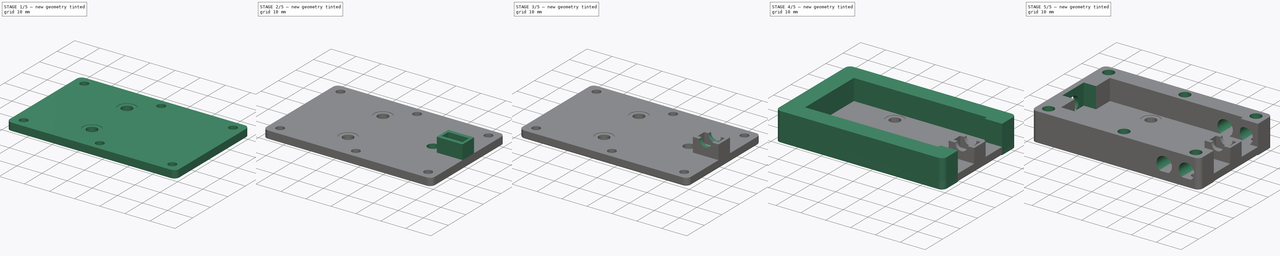
[diagram: build sequence overview — one tinted view per stage of 5, left to right]
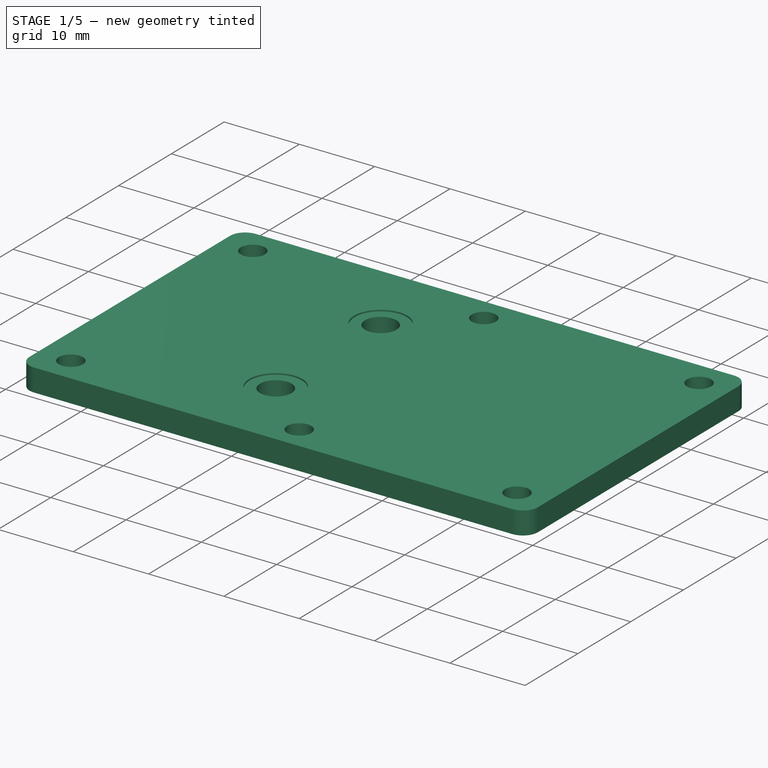
[diagram: stage 1 of 5 — iso view after this stage's code; geometry added in this stage tinted green]
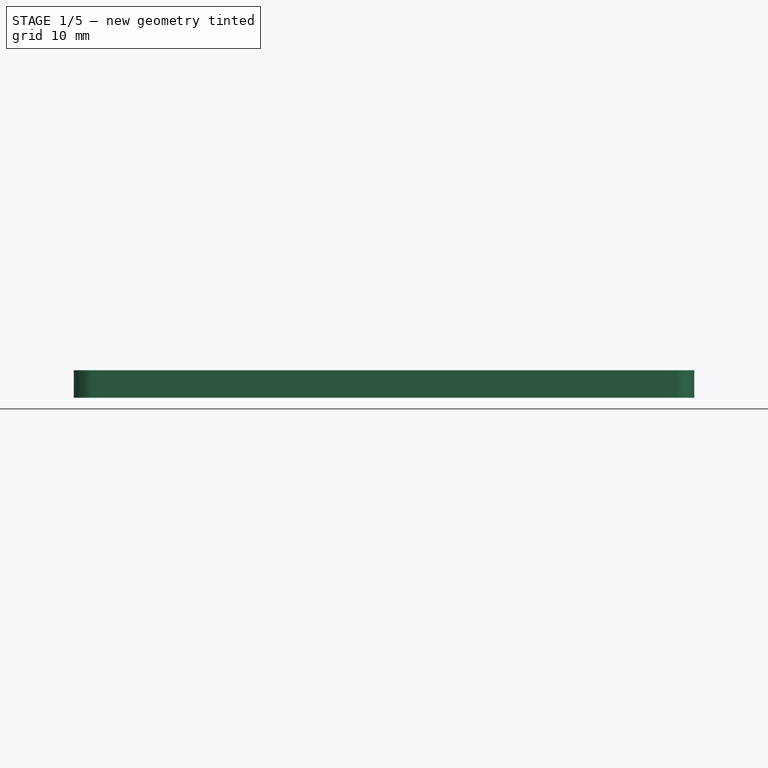
[diagram: stage 1 of 5 — front view after this stage's code; geometry added in this stage tinted green]
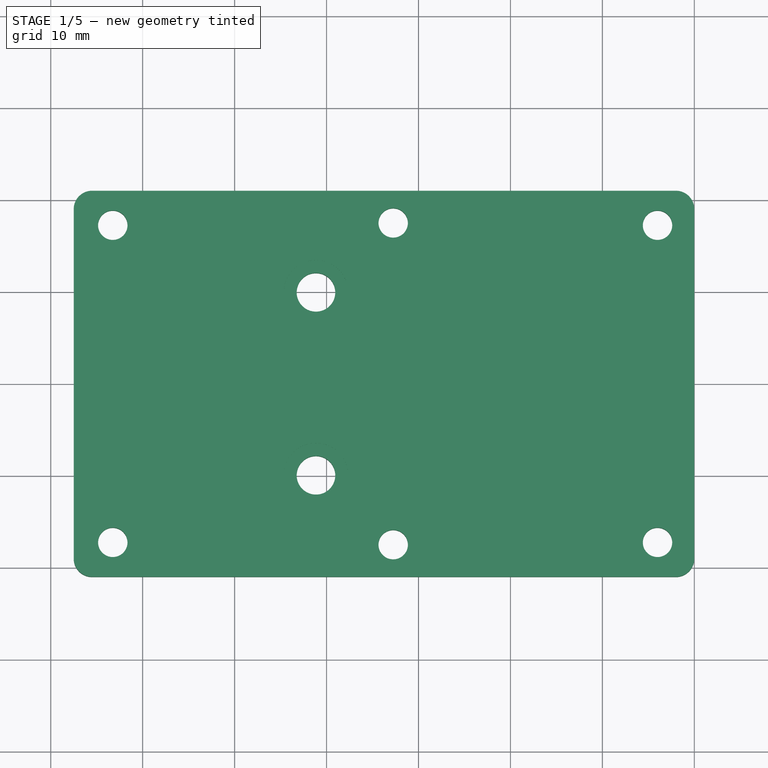
[diagram: stage 1 of 5 — top view after this stage's code; geometry added in this stage tinted green]
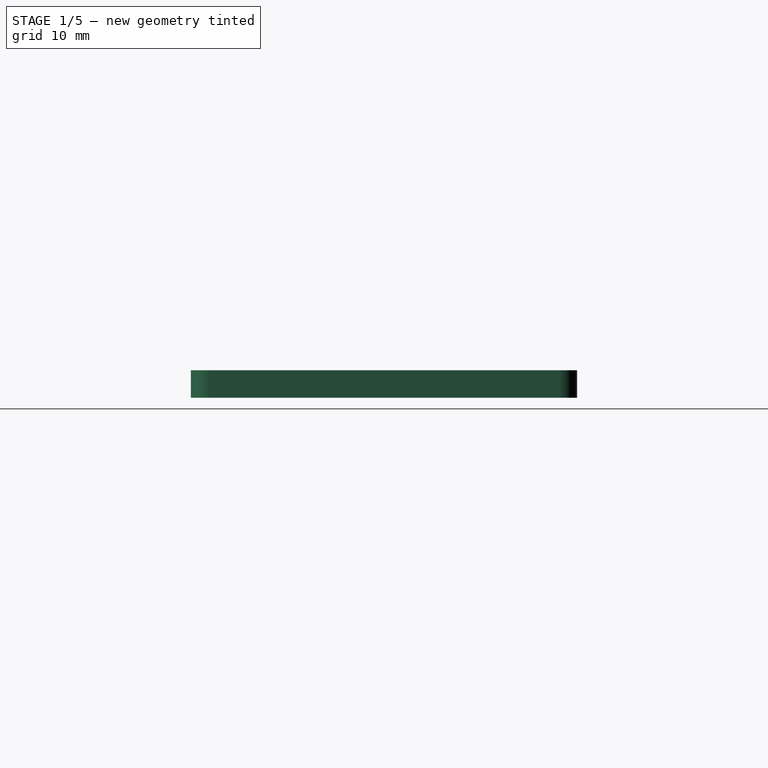
[diagram: stage 1 of 5 — right view after this stage's code; geometry added in this stage tinted green]
FCSTD DOCUMENT  (FreeCAD 1.0R39109 (Git))
Label: PaddleCase
License: All rights reserved
LicenseURL: http://en.wikipedia.org/wiki/All_rights_reserved
objects: Sketcher::SketchObject×16, PartDesign::Pocket×13, PartDesign::Pad×3, PartDesign::Body×2, App::Part×2, PartDesign::Chamfer×1, PartDesign::Fillet×1
note: 88 computed .brp shape members not serialized (recipe doc carries the construction recipe); baked Part::Feature solids carry a one-line shape summary decoded from their .brp

FEATURE [PartDesign::Body] Body  label="PaddleFrameBody"
  AllowCompound = false
  Group = -> [Sketch,Pad,Sketch001,Pocket,Sketch002,Pocket001,Sketch003,Pocket002,Sketch004,Pocket003,Sketch005,Pocket004,Sketch006,Pocket005]
  Origin = -> Origin001
  Tip = -> Pocket005
FEATURE [App::Part] Part  label="PaddleFrame"
  Group = -> [Body]
  Origin = -> Origin
FEATURE [Sketcher::SketchObject] Sketch007
  ArcFitTolerance = 1e-06
  AttachmentSupport = -> [XY_Plane003]
  FullyConstrained = true
  MakeInternals = false
  MapMode = 5
  sketch-geometry (12):
    g0: LineSegment StartX=-2 StartY=21 StartZ=0 EndX=-65.5 EndY=21 EndZ=0
    g1: LineSegment StartX=-67.5 StartY=19 StartZ=0 EndX=-67.5 EndY=-19 EndZ=0
    g2: LineSegment StartX=-65.5 StartY=-21 StartZ=0 EndX=-2 EndY=-21 EndZ=0
    g3: LineSegment StartX=0 StartY=-19 StartZ=0 EndX=0 EndY=19 EndZ=0
    g4: ArcOfCircle CenterX=-65.5 CenterY=19 CenterZ=0 NormalX=0 NormalY=0 NormalZ=1 AngleXU=0 Radius=2 StartAngle=1.5708 EndAngle=3.14159
    g5: GeomPoint [constr] X=-67.5 Y=21 Z=0
    g6: ArcOfCircle CenterX=-2 CenterY=19 CenterZ=0 NormalX=0 NormalY=0 NormalZ=1 AngleXU=0 Radius=2 StartAngle=6e-16 EndAngle=1.5708
    g7: GeomPoint [constr] X=0 Y=21 Z=0
    g8: ArcOfCircle CenterX=-2 CenterY=-19 CenterZ=0 NormalX=0 NormalY=0 NormalZ=1 AngleXU=0 Radius=2 StartAngle=4.71239 EndAngle=6.28319
    g9: GeomPoint [constr] X=0 Y=-21 Z=0
    g10: ArcOfCircle CenterX=-65.5 CenterY=-19 CenterZ=0 NormalX=0 NormalY=0 NormalZ=1 AngleXU=0 Radius=2 StartAngle=3.14159 EndAngle=4.71239
    g11: GeomPoint [constr] X=-67.5 Y=-21 Z=0
  constraints (28):
    c: Horizontal(g0)
    c: Horizontal(g2)
    c: Vertical(g1)
    c: Vertical(g3)
    c: PointOnObject(g7,g-2)
    c: DistanceY(g9,g7) = 42
    c: DistanceY(g-1,g7) = 21
    c: DistanceX(g5,g7) = 67.5
    c: PointOnObject(g5,g1)
    c: PointOnObject(g5,g0)
    c: Tangent(g1,g4) = -1.5708
    c: Tangent(g0,g4) = -1.5708
    c: PointOnObject(g7,g0)
    c: PointOnObject(g7,g3)
    c: Tangent(g0,g6) = -1.5708
    c: Tangent(g3,g6) = -1.5708
    c: PointOnObject(g9,g3)
    c: PointOnObject(g9,g2)
    c: Tangent(g3,g8) = -1.5708
    c: Tangent(g2,g8) = -1.5708
    c: PointOnObject(g11,g1)
    c: PointOnObject(g11,g2)
    c: Tangent(g1,g10) = -1.5708
    c: Tangent(g2,g10) = -1.5708
    c: Equal(g10,g8)
    c: Equal(g10,g6)
    c: Equal(g10,g4)
    c: Radius(g10) = 2
FEATURE [PartDesign::Pad] Pad001  label="MainLidPad"
  Direction = (0,0,1)
  Length = 3
  Length2 = 10
  Profile = -> Sketch007
  ReferenceAxis = -> Sketch007 [N_Axis]
  Suppressed = false
  Type = 0
FEATURE [Sketcher::SketchObject] Sketch008
  ArcFitTolerance = 1e-06
  AttachmentSupport = -> [Pocket003]
  FullyConstrained = true
  MakeInternals = false
  MapMode = 5
  Placement = pos=(0,0,11.4) rot=(0,0,1;0rad)
  sketch-geometry (6):
    g0: Circle CenterX=-63.25 CenterY=17.25 CenterZ=0 NormalX=0 NormalY=0 NormalZ=1 AngleXU=0 Radius=1.6
    g1: Circle CenterX=-4 CenterY=17.25 CenterZ=0 NormalX=0 NormalY=0 NormalZ=1 AngleXU=0 Radius=1.6
    g2: Circle CenterX=-4 CenterY=-17.25 CenterZ=0 NormalX=0 NormalY=0 NormalZ=1 AngleXU=0 Radius=1.6
    g3: Circle CenterX=-63.25 CenterY=-17.25 CenterZ=0 NormalX=0 NormalY=0 NormalZ=1 AngleXU=0 Radius=1.6
    g4: Circle CenterX=-32.75 CenterY=-17.5 CenterZ=0 NormalX=0 NormalY=0 NormalZ=1 AngleXU=0 Radius=1.6
    g5: Circle CenterX=-32.75 CenterY=17.5 CenterZ=0 NormalX=0 NormalY=0 NormalZ=1 AngleXU=0 Radius=1.6
  constraints (18):
    c: Diameter(g0) = 3.2
    c: Diameter(g1) = 3.2
    c: Diameter(g2) = 3.2
    c: Diameter(g3) = 3.2
    c: Diameter(g4) = 3.2
    c: Diameter(g5) = 3.2
    c: DistanceX(g1,g2) = 0
    c: DistanceX(g5,g4) = 0
    c: DistanceX(g3,g0) = 0
    c: DistanceX(g1,g-1) = 4
    c: DistanceX(g5,g-1) = 32.75
    c: DistanceX(g0,g-1) = 63.25
    c: DistanceY(g-1,g1) = 17.25
    c: DistanceY(g2,g-1) = 17.25
    c: DistanceY(g1,g0) = 0
    c: DistanceY(g3,g2) = 0
    c: DistanceY(g-1,g5) = 17.5
    c: DistanceY(g4,g-1) = 17.5
FEATURE [PartDesign::Pocket] Pocket006  label="ScrewLidHoles"
  BaseFeature = -> Pad001
  Direction = (0,0,-1)
  Length = 5
  Length2 = 5
  Profile = -> Sketch008
  ReferenceAxis = -> Sketch008 [N_Axis]
  Suppressed = false
  Type = 1
FEATURE [Sketcher::SketchObject] Sketch009
  ArcFitTolerance = 1e-06
  AttachmentSupport = -> [Pocket006]
  FullyConstrained = true
  MakeInternals = false
  MapMode = 5
  Placement = pos=(0,0,3) rot=(0,0,1;0rad)
  sketch-geometry (2):
    g0: Circle CenterX=-41.15 CenterY=9.95 CenterZ=0 NormalX=0 NormalY=0 NormalZ=1 AngleXU=0 Radius=2.1
    g1: Circle CenterX=-41.15 CenterY=-9.95 CenterZ=0 NormalX=0 NormalY=0 NormalZ=1 AngleXU=0 Radius=2.1
  constraints (6):
    c: DistanceX(g1,g0) = 0
    c: Equal(g0,g1)
    c: Diameter(g0) = 4.2
    c: DistanceY(g-1,g0) = 9.95
    c: DistanceY(g1,g-1) = 9.95
    c: DistanceX(g1,g-1) = 41.15
FEATURE [PartDesign::Pocket] Pocket007  label="PaddleScrewPockets"
  BaseFeature = -> Pocket006
  Direction = (0,0,-1)
  Length = 5
  Length2 = 5
  Profile = -> Sketch009
  ReferenceAxis = -> Sketch009 [N_Axis]
  Suppressed = false
  Type = 1
FEATURE [Sketcher::SketchObject] Sketch010
  ArcFitTolerance = 1e-06
  AttachmentSupport = -> [Pocket006]
  FullyConstrained = true
  MakeInternals = false
  MapMode = 5
  Placement = pos=(0,0,3) rot=(0,0,1;0rad)
  sketch-geometry (2):
    g0: Circle CenterX=-41.15 CenterY=9.95 CenterZ=0 NormalX=0 NormalY=0 NormalZ=1 AngleXU=0 Radius=3.5
    g1: Circle CenterX=-41.15 CenterY=-9.95 CenterZ=0 NormalX=0 NormalY=0 NormalZ=1 AngleXU=0 Radius=3.5
  constraints (6):
    c: DistanceX(g1,g0) = 0
    c: Equal(g0,g1)
    c: Diameter(g0) = 7
    c: DistanceY(g-1,g0) = 9.95
    c: DistanceY(g1,g-1) = 9.95
    c: DistanceX(g1,g-1) = 41.15
FEATURE [PartDesign::Pocket] Pocket008  label="WasherPockets"
  BaseFeature = -> Pocket007
  Direction = (0,0,-1)
  Length = 0.2
  Length2 = 5
  Profile = -> Sketch010
  ReferenceAxis = -> Sketch010 [N_Axis]
  Suppressed = false
  Type = 0
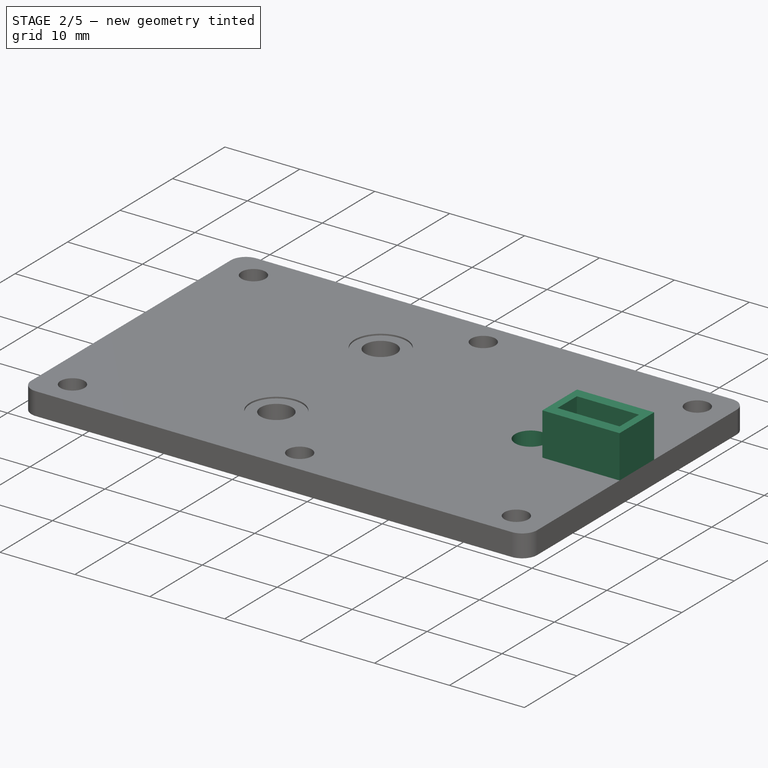
[diagram: stage 2 of 5 — iso view after this stage's code; geometry added in this stage tinted green]
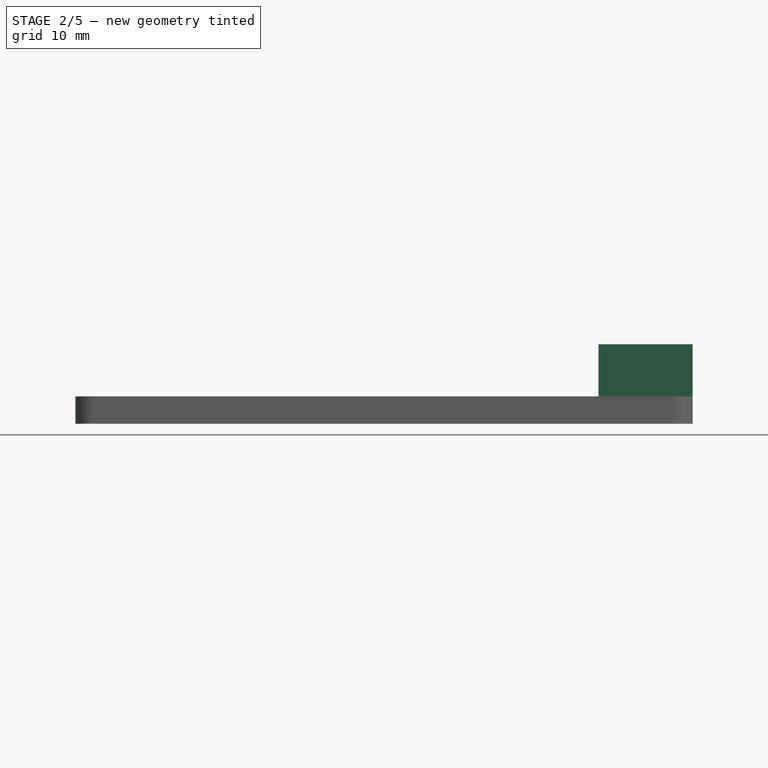
[diagram: stage 2 of 5 — front view after this stage's code; geometry added in this stage tinted green]
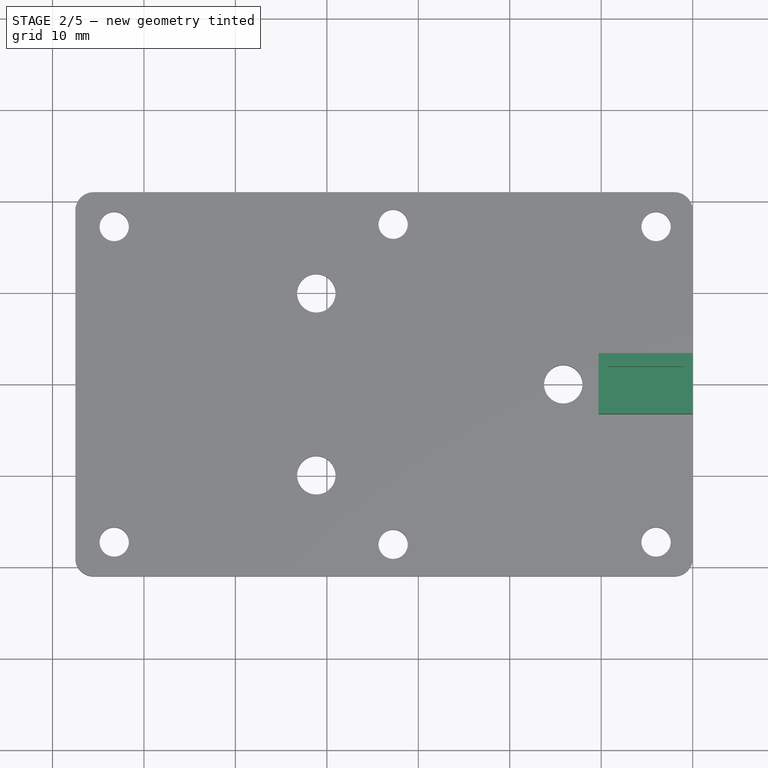
[diagram: stage 2 of 5 — top view after this stage's code; geometry added in this stage tinted green]
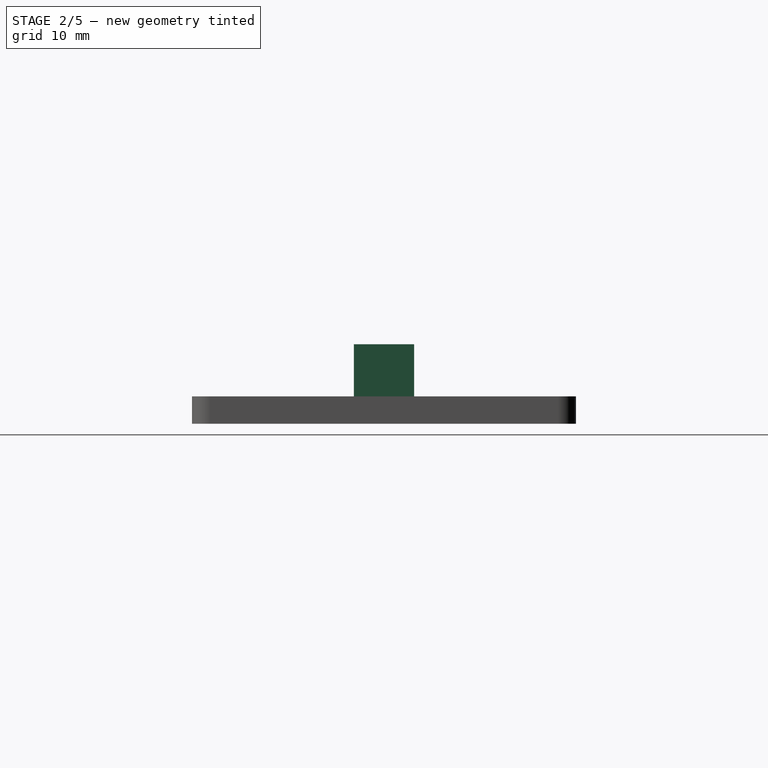
[diagram: stage 2 of 5 — right view after this stage's code; geometry added in this stage tinted green]
FEATURE [Sketcher::SketchObject] Sketch011
  ArcFitTolerance = 1e-06
  AttachmentSupport = -> [Pocket008]
  FullyConstrained = true
  MakeInternals = false
  MapMode = 5
  Placement = pos=(0,0,3) rot=(0,0,1;0rad)
  sketch-geometry (1):
    g0: Circle CenterX=-14.15 CenterY=0 CenterZ=0 NormalX=0 NormalY=0 NormalZ=1 AngleXU=0 Radius=2.1
  constraints (3):
    c: Diameter(g0) = 4.2
    c: PointOnObject(g0,g-1)
    c: DistanceX(g0,g-1) = 14.15
FEATURE [PartDesign::Pocket] Pocket009  label="ContactPocket"
  BaseFeature = -> Pocket008
  Direction = (0,0,-1)
  Length = 5
  Length2 = 5
  Profile = -> Sketch011
  ReferenceAxis = -> Sketch011 [N_Axis]
  Suppressed = false
  Type = 1
FEATURE [Sketcher::SketchObject] Sketch012
  ArcFitTolerance = 1e-06
  AttachmentSupport = -> [Pocket009]
  FullyConstrained = true
  MakeInternals = false
  MapMode = 5
  Placement = pos=(0,0,3) rot=(0,0,1;0rad)
  sketch-geometry (4):
    g0: LineSegment StartX=-10.3 StartY=3.3 StartZ=0 EndX=-10.3 EndY=-3.3 EndZ=0
    g1: LineSegment StartX=-10.3 StartY=-3.3 StartZ=0 EndX=0 EndY=-3.3 EndZ=0
    g2: LineSegment StartX=0 StartY=-3.3 StartZ=0 EndX=0 EndY=3.3 EndZ=0
    g3: LineSegment StartX=0 StartY=3.3 StartZ=0 EndX=-10.3 EndY=3.3 EndZ=0
  constraints (12):
    c: Coincident(g0,g1)
    c: Coincident(g1,g2)
    c: Coincident(g2,g3)
    c: Coincident(g3,g0)
    c: Vertical(g0)
    c: Vertical(g2)
    c: Horizontal(g1)
    c: Horizontal(g3)
    c: DistanceX(g3,g3) = 10.3
    c: DistanceX(g2,g-1) = 0
    c: DistanceY(g0,g0) = 6.6
    c: DistanceY(g-1,g0) = 3.3
FEATURE [PartDesign::Pad] Pad002  label="MagPad"
  BaseFeature = -> Pocket009
  Direction = (0,0,1)
  Length = 5.7
  Length2 = 10
  Profile = -> Sketch012
  ReferenceAxis = -> Sketch012 [N_Axis]
  Suppressed = false
  Type = 0
FEATURE [Sketcher::SketchObject] Sketch013
  ArcFitTolerance = 1e-06
  AttachmentSupport = -> [Pad002]
  FullyConstrained = true
  MakeInternals = false
  MapMode = 5
  Placement = pos=(0,0,8.7) rot=(0,0,1;0rad)
  sketch-geometry (4):
    g0: LineSegment StartX=-9.3 StartY=-1.85 StartZ=0 EndX=-1 EndY=-1.85 EndZ=0
    g1: LineSegment StartX=-1 StartY=1.85 StartZ=0 EndX=-9.3 EndY=1.85 EndZ=0
    g2: LineSegment StartX=-9.3 StartY=1.85 StartZ=0 EndX=-9.3 EndY=-1.85 EndZ=0
    g3: LineSegment StartX=-1 StartY=1.85 StartZ=0 EndX=-1 EndY=-1.85 EndZ=0
  constraints (12):
    c: Horizontal(g0)
    c: Horizontal(g1)
    c: DistanceX(g1,g-1) = 1
    c: Coincident(g2,g1)
    c: Coincident(g2,g0)
    c: Vertical(g2)
    c: Coincident(g3,g1)
    c: Coincident(g3,g0)
    c: Vertical(g3)
    c: DistanceX(g1,g1) = 8.3
    c: DistanceY(g2,g2) = 3.7
    c: DistanceY(g0,g-1) = 1.85
FEATURE [PartDesign::Pocket] Pocket010
  BaseFeature = -> Pad002
  Direction = (0,0,-1)
  Length = 4.15
  Length2 = 5
  Profile = -> Sketch013
  ReferenceAxis = -> Sketch013 [N_Axis]
  Suppressed = false
  Type = 0
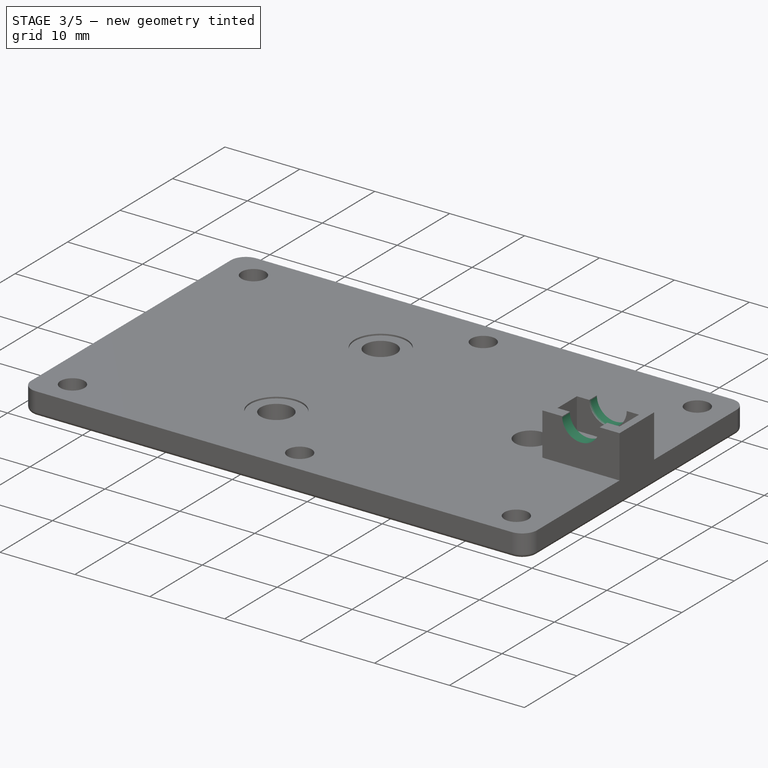
[diagram: stage 3 of 5 — iso view after this stage's code; geometry added in this stage tinted green]
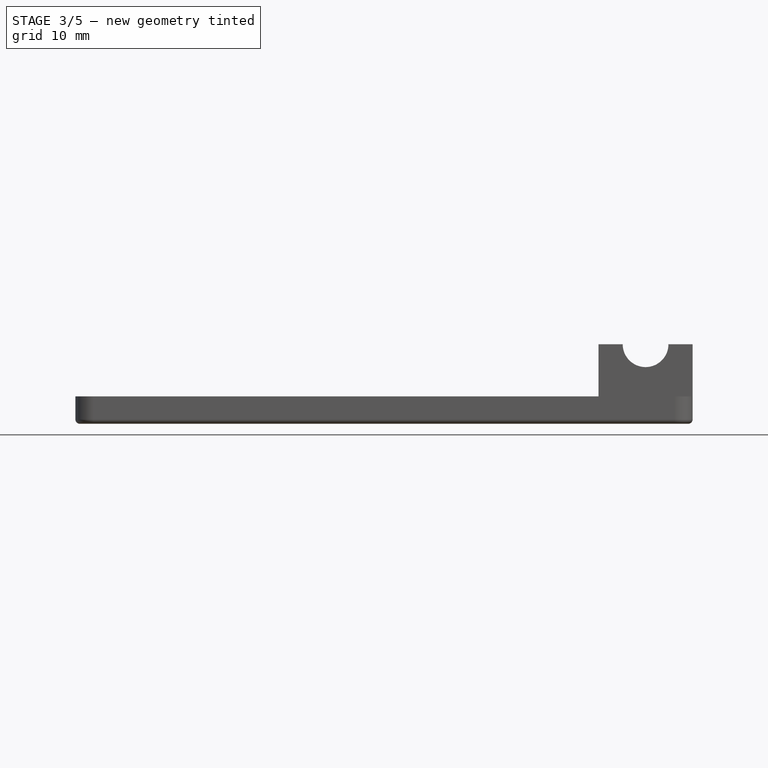
[diagram: stage 3 of 5 — front view after this stage's code; geometry added in this stage tinted green]
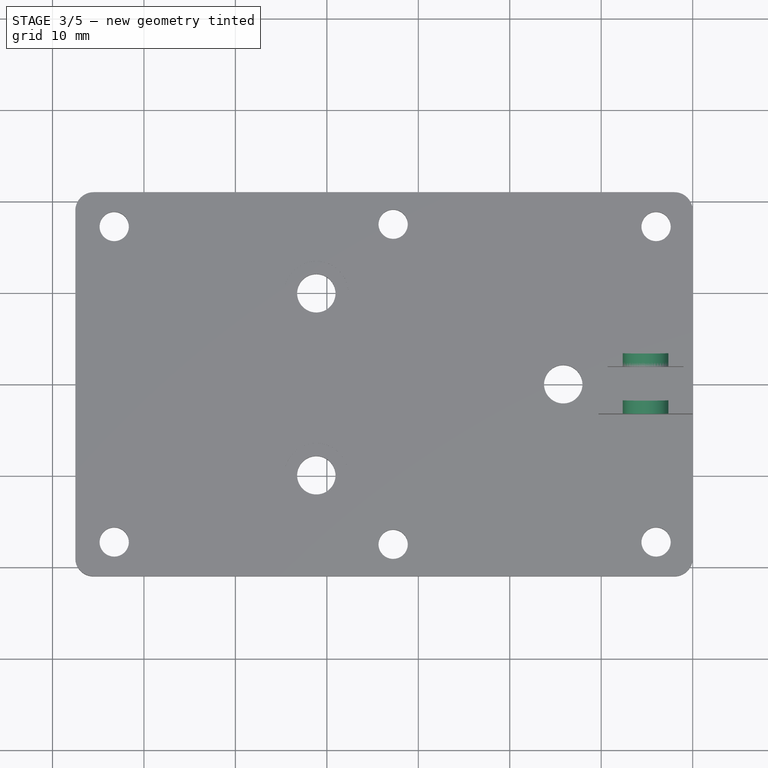
[diagram: stage 3 of 5 — top view after this stage's code; geometry added in this stage tinted green]
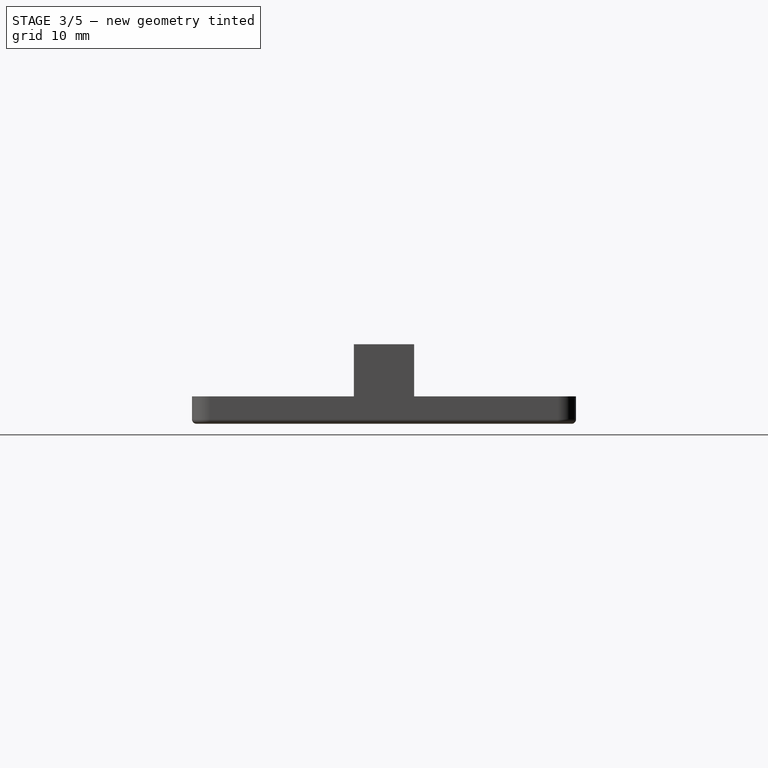
[diagram: stage 3 of 5 — right view after this stage's code; geometry added in this stage tinted green]
FEATURE [Sketcher::SketchObject] Sketch014
  ArcFitTolerance = 1e-06
  AttachmentSupport = -> [Pocket010]
  FullyConstrained = true
  MakeInternals = false
  MapMode = 5
  Placement = pos=(0,-3.3,0) rot=(1,0,0;1.5708rad)
  sketch-geometry (1):
    g0: Circle CenterX=-5.15 CenterY=8.7 CenterZ=0 NormalX=0 NormalY=0 NormalZ=1 AngleXU=0 Radius=2.5
  constraints (3):
    c: Diameter(g0) = 5
    c: DistanceY(g-1,g0) = 8.7
    c: DistanceX(g0,g-1) = 5.15
FEATURE [PartDesign::Pocket] Pocket011
  BaseFeature = -> Pocket010
  Direction = (0,1,-2e-16)
  Length = 1
  Length2 = 5
  Profile = -> Sketch014
  ReferenceAxis = -> Sketch014 [N_Axis]
  Suppressed = false
  Type = 1
FEATURE [Sketcher::SketchObject] Sketch015
  ArcFitTolerance = 1e-06
  AttachmentSupport = -> [Pocket011]
  FullyConstrained = true
  MakeInternals = false
  MapMode = 5
  Placement = pos=(0,3.3,0) rot=(0,0.707107,0.707107;3.14159rad)
  sketch-geometry (1):
    g0: Circle CenterX=5.15 CenterY=8.7 CenterZ=0 NormalX=0 NormalY=0 NormalZ=1 AngleXU=0 Radius=2.5
  constraints (3):
    c: Diameter(g0) = 5
    c: DistanceY(g-1,g0) = 8.7
    c: DistanceX(g-1,g0) = 5.15
FEATURE [PartDesign::Pocket] Pocket012
  BaseFeature = -> Pocket011
  Direction = (0,-1,2e-16)
  Length = 1
  Length2 = 5
  Profile = -> Sketch015
  ReferenceAxis = -> Sketch015 [N_Axis]
  Suppressed = false
  Type = 0
FEATURE [PartDesign::Chamfer] Chamfer
  Angle = 45
  Base = -> Pocket012 [Edge24,Edge23,Edge21,Edge16,Edge18,Edge19,Edge20,Edge22,Edge17]
  BaseFeature = -> Pocket012
  ChamferType = 0
  FlipDirection = false
  Size = 0.5
  Size2 = 1
  SupportTransform = false
  Suppressed = false
  UseAllEdges = false
FEATURE [PartDesign::Fillet] Fillet
  Base = -> Chamfer [Edge2,Edge3,Edge5,Edge7,Edge9,Edge8,Edge6,Edge4]
  BaseFeature = -> Chamfer
  Radius = 0.5
  SupportTransform = false
  Suppressed = false
  UseAllEdges = false
FEATURE [PartDesign::Body] Body001  label="PaddleLidBody"
  AllowCompound = false
  Group = -> [Sketch007,Pad001,Sketch008,Pocket006,Sketch009,Pocket007,Sketch010,Pocket008,Sketch011,Pocket009,Sketch012,Pad002,Sketch013,Pocket010,Sketch014,Pocket011,Sketch015,Pocket012,Chamfer,Fillet]
  Origin = -> Origin003
  Tip = -> Fillet
FEATURE [App::Part] Part001  label="PaddleLid"
  Group = -> [Body001]
  Origin = -> Origin002
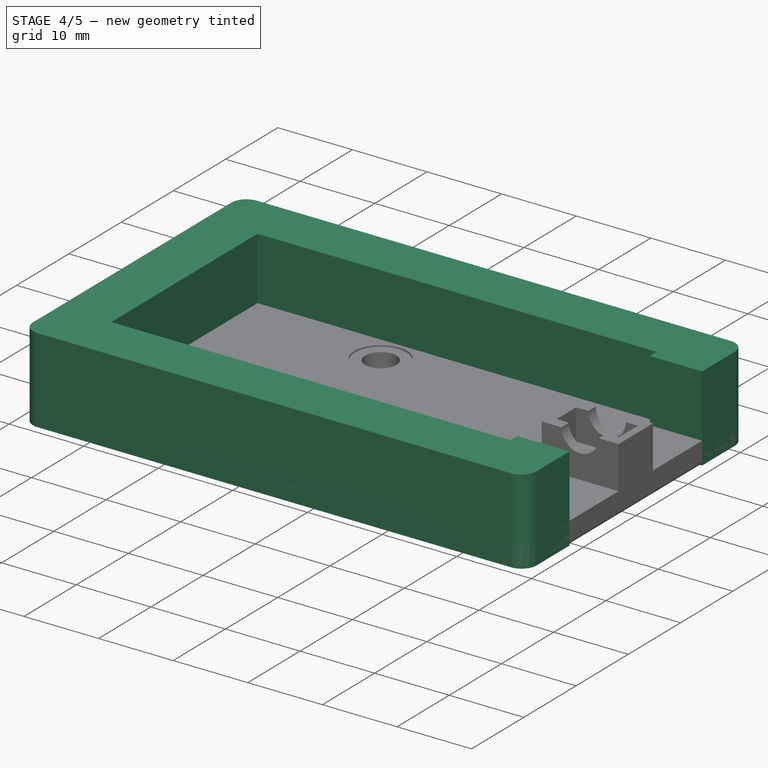
[diagram: stage 4 of 5 — iso view after this stage's code; geometry added in this stage tinted green]
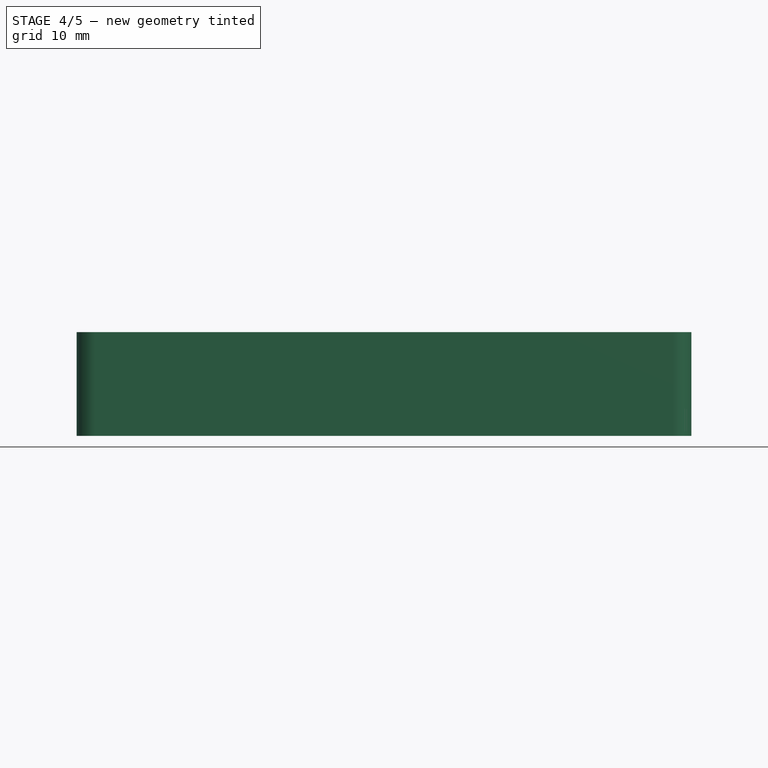
[diagram: stage 4 of 5 — front view after this stage's code; geometry added in this stage tinted green]
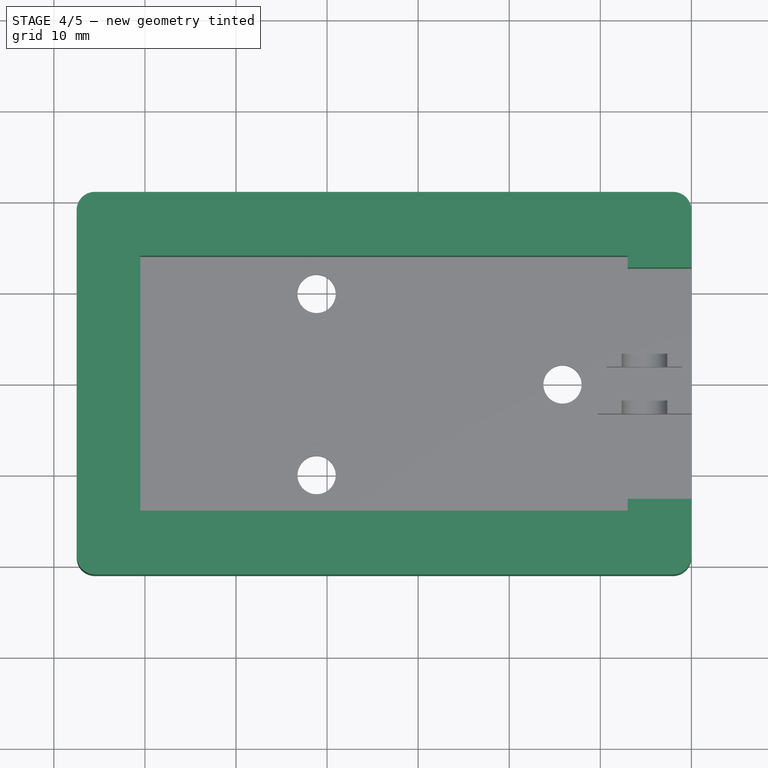
[diagram: stage 4 of 5 — top view after this stage's code; geometry added in this stage tinted green]
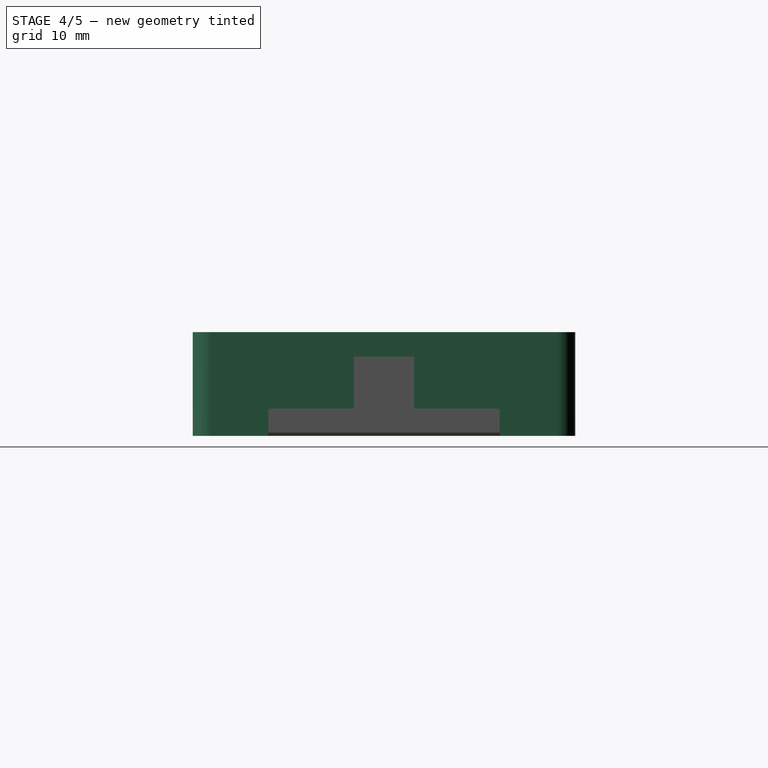
[diagram: stage 4 of 5 — right view after this stage's code; geometry added in this stage tinted green]
FEATURE [Sketcher::SketchObject] Sketch
  ArcFitTolerance = 1e-06
  AttachmentSupport = -> [XY_Plane001]
  FullyConstrained = true
  MakeInternals = false
  MapMode = 5
  sketch-geometry (12):
    g0: LineSegment StartX=-2 StartY=21 StartZ=0 EndX=-65.5 EndY=21 EndZ=0
    g1: LineSegment StartX=-67.5 StartY=19 StartZ=0 EndX=-67.5 EndY=-19 EndZ=0
    g2: LineSegment StartX=-65.5 StartY=-21 StartZ=0 EndX=-2 EndY=-21 EndZ=0
    g3: LineSegment StartX=0 StartY=-19 StartZ=0 EndX=0 EndY=19 EndZ=0
    g4: ArcOfCircle CenterX=-65.5 CenterY=19 CenterZ=0 NormalX=0 NormalY=0 NormalZ=1 AngleXU=0 Radius=2 StartAngle=1.5708 EndAngle=3.14159
    g5: GeomPoint [constr] X=-67.5 Y=21 Z=0
    g6: ArcOfCircle CenterX=-2 CenterY=19 CenterZ=0 NormalX=0 NormalY=0 NormalZ=1 AngleXU=0 Radius=2 StartAngle=7e-16 EndAngle=1.5708
    g7: GeomPoint [constr] X=0 Y=21 Z=0
    g8: ArcOfCircle CenterX=-2 CenterY=-19 CenterZ=0 NormalX=0 NormalY=0 NormalZ=1 AngleXU=0 Radius=2 StartAngle=4.71239 EndAngle=6.28319
    g9: GeomPoint [constr] X=0 Y=-21 Z=0
    g10: ArcOfCircle CenterX=-65.5 CenterY=-19 CenterZ=0 NormalX=0 NormalY=0 NormalZ=1 AngleXU=0 Radius=2 StartAngle=3.14159 EndAngle=4.71239
    g11: GeomPoint [constr] X=-67.5 Y=-21 Z=0
  constraints (28):
    c: Horizontal(g0)
    c: Horizontal(g2)
    c: Vertical(g1)
    c: Vertical(g3)
    c: PointOnObject(g7,g-2)
    c: DistanceY(g9,g7) = 42
    c: DistanceY(g-1,g7) = 21
    c: DistanceX(g5,g7) = 67.5
    c: PointOnObject(g5,g1)
    c: PointOnObject(g5,g0)
    c: Tangent(g1,g4) = -1.5708
    c: Tangent(g0,g4) = -1.5708
    c: PointOnObject(g7,g0)
    c: PointOnObject(g7,g3)
    c: Tangent(g0,g6) = -1.5708
    c: Tangent(g3,g6) = -1.5708
    c: PointOnObject(g9,g3)
    c: PointOnObject(g9,g2)
    c: Tangent(g3,g8) = -1.5708
    c: Tangent(g2,g8) = -1.5708
    c: PointOnObject(g11,g1)
    c: PointOnObject(g11,g2)
    c: Tangent(g1,g10) = -1.5708
    c: Tangent(g2,g10) = -1.5708
    c: Equal(g10,g8)
    c: Equal(g10,g6)
    c: Equal(g10,g4)
    c: Radius(g10) = 2
FEATURE [PartDesign::Pad] Pad  label="MainPad"
  Direction = (0,0,1)
  Length = 11.4
  Length2 = 10
  Profile = -> Sketch
  ReferenceAxis = -> Sketch [N_Axis]
  Suppressed = false
  Type = 0
FEATURE [Sketcher::SketchObject] Sketch001
  ArcFitTolerance = 1e-06
  AttachmentSupport = -> [Pad]
  FullyConstrained = true
  MakeInternals = false
  MapMode = 5
  Placement = pos=(0,0,11.4) rot=(0,0,1;0rad)
  sketch-geometry (4):
    g0: LineSegment StartX=-60.5 StartY=14 StartZ=0 EndX=-60.5 EndY=-14 EndZ=0
    g1: LineSegment StartX=-60.5 StartY=-14 StartZ=0 EndX=-7 EndY=-14 EndZ=0
    g2: LineSegment StartX=-7 StartY=-14 StartZ=0 EndX=-7 EndY=14 EndZ=0
    g3: LineSegment StartX=-7 StartY=14 StartZ=0 EndX=-60.5 EndY=14 EndZ=0
  constraints (12):
    c: Coincident(g0,g1)
    c: Coincident(g1,g2)
    c: Coincident(g2,g3)
    c: Coincident(g3,g0)
    c: Vertical(g0)
    c: Vertical(g2)
    c: Horizontal(g1)
    c: Horizontal(g3)
    c: DistanceX(g3,g3) = 53.5
    c: DistanceY(g2,g2) = 28
    c: DistanceY(g1,g-1) = 14
    c: DistanceX(g2,g-1) = 7
FEATURE [PartDesign::Pocket] Pocket  label="MainHole"
  BaseFeature = -> Pad
  Direction = (0,0,-1)
  Length = 5
  Length2 = 5
  Profile = -> Sketch001
  ReferenceAxis = -> Sketch001 [N_Axis]
  Suppressed = false
  Type = 1
FEATURE [Sketcher::SketchObject] Sketch002
  ArcFitTolerance = 1e-06
  AttachmentSupport = -> [Pocket]
  FullyConstrained = true
  MakeInternals = false
  MapMode = 5
  Placement = pos=(0,0,11.4) rot=(0,0,1;0rad)
  sketch-geometry (4):
    g0: LineSegment StartX=-9.398 StartY=12.7 StartZ=0 EndX=-9.398 EndY=-12.7 EndZ=0
    g1: LineSegment StartX=-9.398 StartY=-12.7 StartZ=0 EndX=6.262 EndY=-12.7 EndZ=0
    g2: LineSegment StartX=6.262 StartY=-12.7 StartZ=0 EndX=6.262 EndY=12.7 EndZ=0
    g3: LineSegment StartX=6.262 StartY=12.7 StartZ=0 EndX=-9.398 EndY=12.7 EndZ=0
  constraints (12):
    c: Coincident(g0,g1)
    c: Coincident(g1,g2)
    c: Coincident(g2,g3)
    c: Coincident(g3,g0)
    c: Vertical(g0)
    c: Vertical(g2)
    c: Horizontal(g1)
    c: Horizontal(g3)
    c: DistanceY(g2,g2) = 25.4
    c: DistanceY(g-1,g2) = 12.7
    c: DistanceX(g3,g3) = 15.66
    c: DistanceX(g0,g-1) = 9.398
FEATURE [PartDesign::Pocket] Pocket001  label="FrontPocket"
  BaseFeature = -> Pocket
  Direction = (0,0,-1)
  Length = 5
  Length2 = 5
  Profile = -> Sketch002
  ReferenceAxis = -> Sketch002 [N_Axis]
  Suppressed = false
  Type = 1
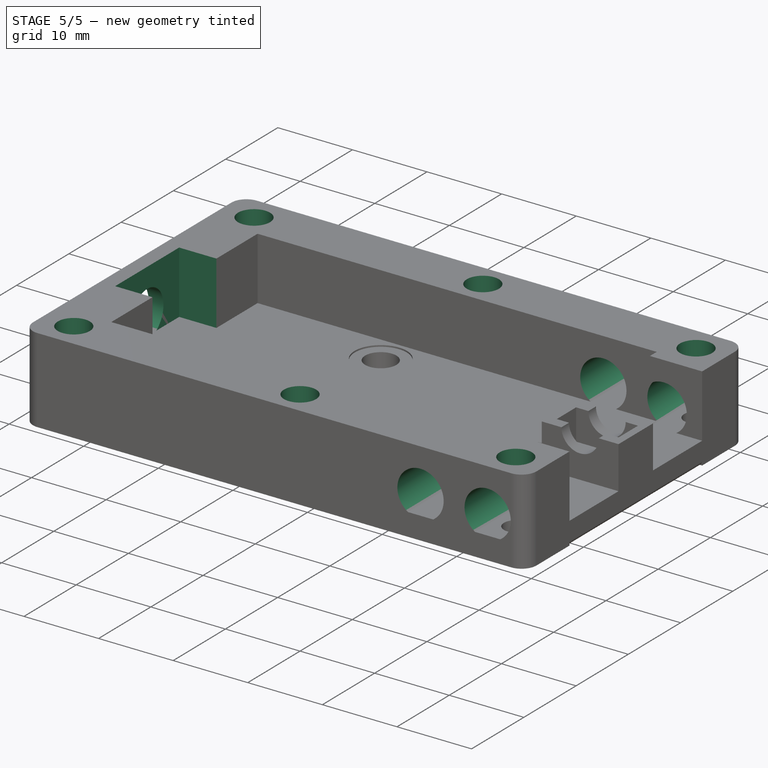
[diagram: stage 5 of 5 — iso view after this stage's code; geometry added in this stage tinted green]
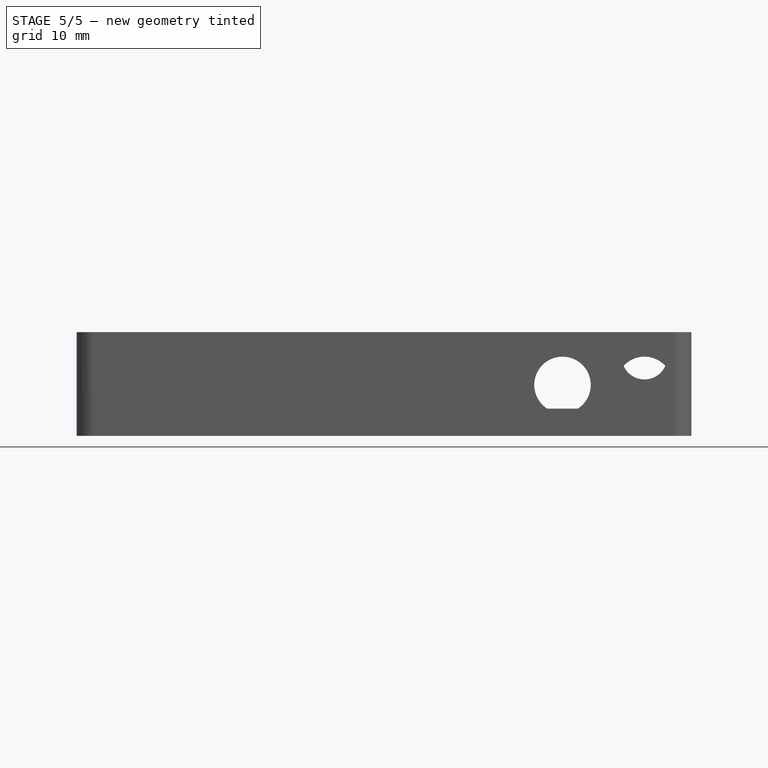
[diagram: stage 5 of 5 — front view after this stage's code; geometry added in this stage tinted green]
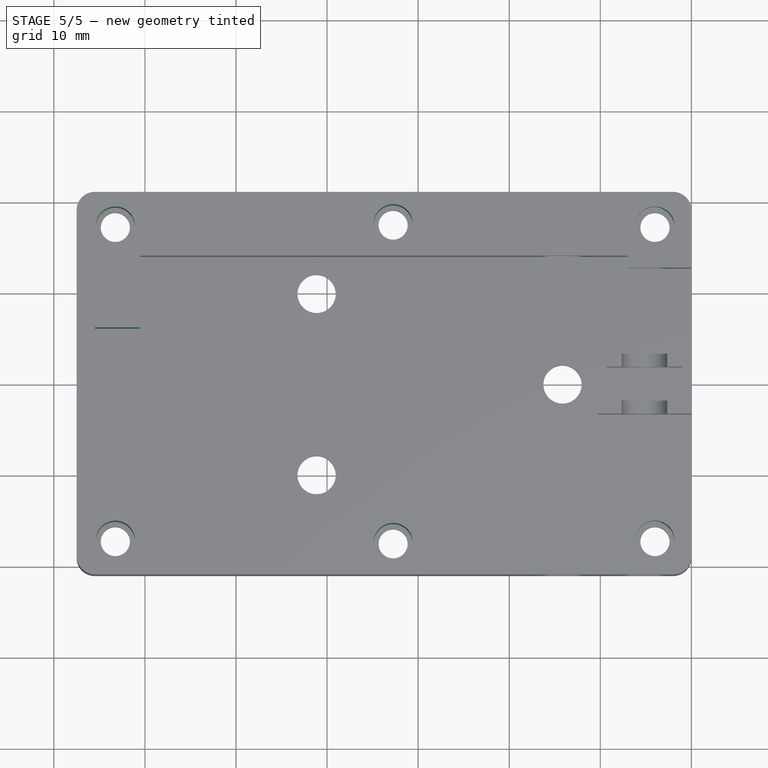
[diagram: stage 5 of 5 — top view after this stage's code; geometry added in this stage tinted green]
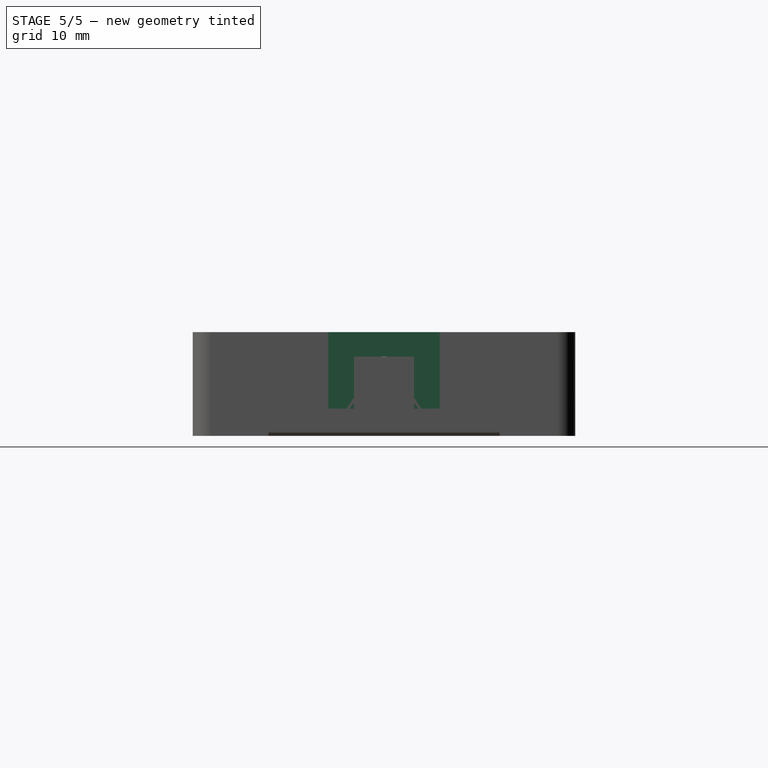
[diagram: stage 5 of 5 — right view after this stage's code; geometry added in this stage tinted green]
FEATURE [Sketcher::SketchObject] Sketch003
  ArcFitTolerance = 1e-06
  AttachmentSupport = -> [Pocket001]
  FullyConstrained = true
  MakeInternals = false
  MapMode = 5
  Placement = pos=(0,0,11.4) rot=(0,0,1;0rad)
  sketch-geometry (4):
    g0: LineSegment StartX=-65.5 StartY=6.125 StartZ=0 EndX=-65.5 EndY=-6.125 EndZ=0
    g1: LineSegment StartX=-65.5 StartY=-6.125 StartZ=0 EndX=-55.914 EndY=-6.125 EndZ=0
    g2: LineSegment StartX=-55.914 StartY=-6.125 StartZ=0 EndX=-55.914 EndY=6.125 EndZ=0
    g3: LineSegment StartX=-55.914 StartY=6.125 StartZ=0 EndX=-65.5 EndY=6.125 EndZ=0
  constraints (12):
    c: Coincident(g0,g1)
    c: Coincident(g1,g2)
    c: Coincident(g2,g3)
    c: Coincident(g3,g0)
    c: Vertical(g0)
    c: Vertical(g2)
    c: Horizontal(g1)
    c: Horizontal(g3)
    c: DistanceY(g2,g2) = 12.25
    c: DistanceY(g-1,g2) = 6.125
    c: DistanceX(g0,g-1) = 65.5
    c: DistanceX(g1,g1) = 9.586
FEATURE [PartDesign::Pocket] Pocket002  label="JackTopPocket"
  BaseFeature = -> Pocket001
  Direction = (0,0,-1)
  Length = 5
  Length2 = 5
  Profile = -> Sketch003
  ReferenceAxis = -> Sketch003 [N_Axis]
  Suppressed = false
  Type = 1
FEATURE [Sketcher::SketchObject] Sketch004
  ArcFitTolerance = 1e-06
  AttachmentSupport = -> [Pocket002]
  FullyConstrained = true
  MakeInternals = false
  MapMode = 5
  Placement = pos=(-65.5,0,0) rot=(0.57735,0.57735,0.57735;2.0944rad)
  sketch-geometry (1):
    g0: Circle CenterX=0 CenterY=5.6 CenterZ=0 NormalX=0 NormalY=0 NormalZ=1 AngleXU=0 Radius=3.125
  constraints (3):
    c: Diameter(g0) = 6.25
    c: PointOnObject(g0,g-2)
    c: DistanceY(g-1,g0) = 5.6
FEATURE [PartDesign::Pocket] Pocket003  label="JackPocket"
  BaseFeature = -> Pocket002
  Direction = (-1,0,0)
  Length = 5
  Length2 = 5
  Profile = -> Sketch004
  ReferenceAxis = -> Sketch004 [N_Axis]
  Suppressed = false
  Type = 1
FEATURE [Sketcher::SketchObject] Sketch005
  ArcFitTolerance = 1e-06
  AttachmentSupport = -> [Pocket003]
  FullyConstrained = true
  MakeInternals = false
  MapMode = 5
  Placement = pos=(0,0,11.4) rot=(0,0,1;0rad)
  sketch-geometry (6):
    g0: Circle CenterX=-63.25 CenterY=17.25 CenterZ=0 NormalX=0 NormalY=0 NormalZ=1 AngleXU=0 Radius=2.15
    g1: Circle CenterX=-4 CenterY=17.25 CenterZ=0 NormalX=0 NormalY=0 NormalZ=1 AngleXU=0 Radius=2.15
    g2: Circle CenterX=-4 CenterY=-17.25 CenterZ=0 NormalX=0 NormalY=0 NormalZ=1 AngleXU=0 Radius=2.15
    g3: Circle CenterX=-63.25 CenterY=-17.25 CenterZ=0 NormalX=0 NormalY=0 NormalZ=1 AngleXU=0 Radius=2.15
    g4: Circle CenterX=-32.75 CenterY=-17.5 CenterZ=0 NormalX=0 NormalY=0 NormalZ=1 AngleXU=0 Radius=2.15
    g5: Circle CenterX=-32.75 CenterY=17.5 CenterZ=0 NormalX=0 NormalY=0 NormalZ=1 AngleXU=0 Radius=2.15
  constraints (18):
    c: Diameter(g0) = 4.3
    c: Diameter(g1) = 4.3
    c: Diameter(g2) = 4.3
    c: Diameter(g3) = 4.3
    c: Diameter(g4) = 4.3
    c: Diameter(g5) = 4.3
    c: DistanceX(g1,g2) = 0
    c: DistanceX(g5,g4) = 0
    c: DistanceX(g3,g0) = 0
    c: DistanceX(g1,g-1) = 4
    c: DistanceX(g5,g-1) = 32.75
    c: DistanceX(g0,g-1) = 63.25
    c: DistanceY(g-1,g1) = 17.25
    c: DistanceY(g2,g-1) = 17.25
    c: DistanceY(g1,g0) = 0
    c: DistanceY(g3,g2) = 0
    c: DistanceY(g-1,g5) = 17.5
    c: DistanceY(g4,g-1) = 17.5
FEATURE [PartDesign::Pocket] Pocket004  label="ScrewPockets"
  BaseFeature = -> Pocket003
  Direction = (0,0,-1)
  Length = 5
  Length2 = 5
  Profile = -> Sketch005
  ReferenceAxis = -> Sketch005 [N_Axis]
  Suppressed = false
  Type = 1
FEATURE [Sketcher::SketchObject] Sketch006
  ArcFitTolerance = 1e-06
  AttachmentSupport = -> [Pocket004]
  FullyConstrained = true
  MakeInternals = false
  MapMode = 5
  Placement = pos=(0,-21,0) rot=(1,0,0;1.5708rad)
  sketch-geometry (2):
    g0: Circle CenterX=-5.15 CenterY=5.6 CenterZ=0 NormalX=0 NormalY=0 NormalZ=1 AngleXU=0 Radius=3.1
    g1: Circle CenterX=-14.15 CenterY=5.6 CenterZ=0 NormalX=0 NormalY=0 NormalZ=1 AngleXU=0 Radius=3.1
  constraints (6):
    c: Diameter(g0) = 6.2
    c: Diameter(g1) = 6.2
    c: DistanceY(g0,g1) = 0
    c: DistanceY(g-1,g0) = 5.6
    c: DistanceX(g0,g-1) = 5.15
    c: DistanceX(g1,g-1) = 14.15
FEATURE [PartDesign::Pocket] Pocket005  label="SidePockets"
  BaseFeature = -> Pocket004
  Direction = (0,1,-2e-16)
  Length = 5
  Length2 = 5
  Profile = -> Sketch006
  ReferenceAxis = -> Sketch006 [N_Axis]
  Suppressed = false
  Type = 1
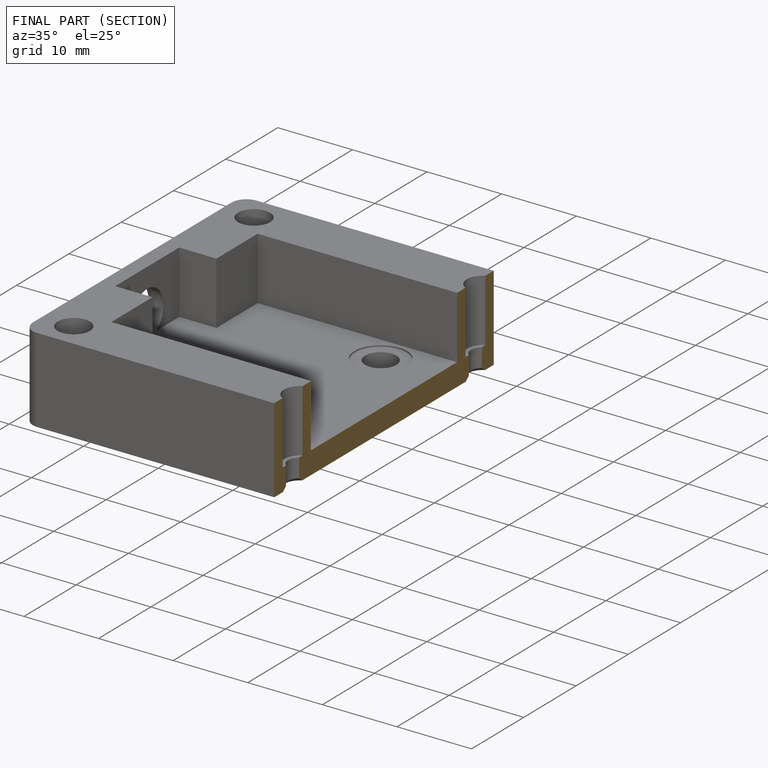
[diagram: finished part — half-section view (interior)]
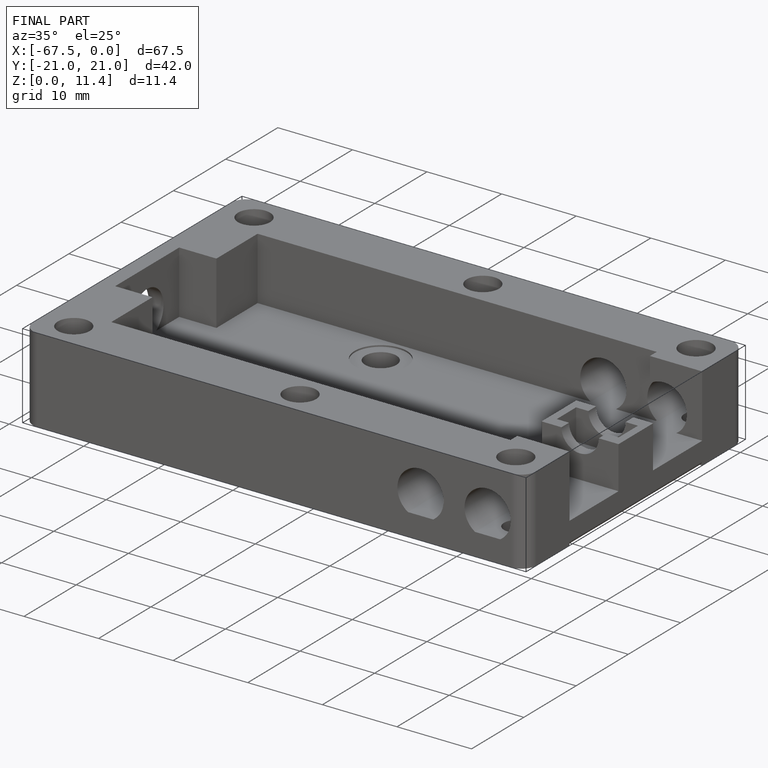
[diagram: finished part — iso view with bounding-box wireframe]
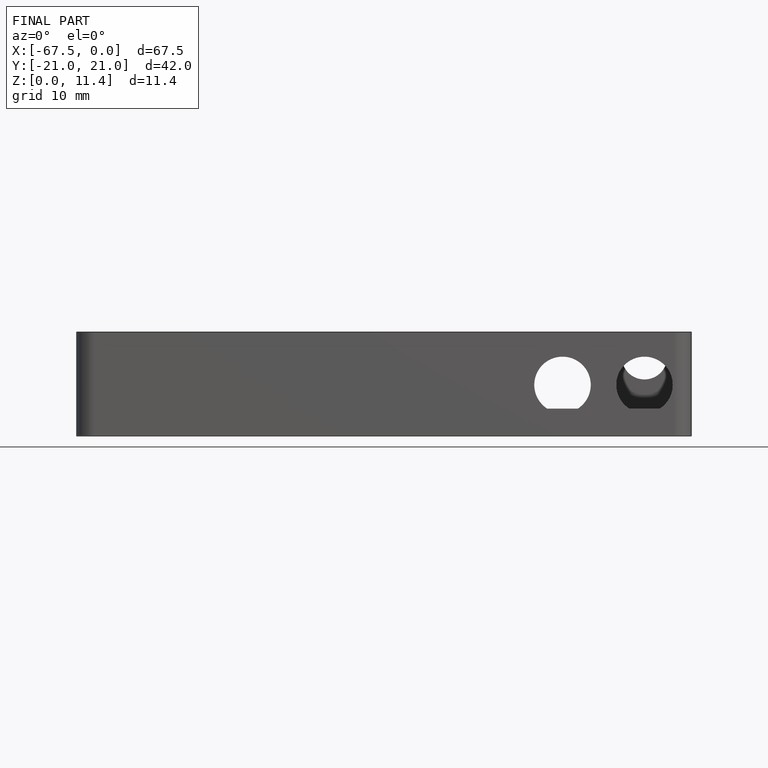
[diagram: finished part — front view with bounding-box wireframe]
